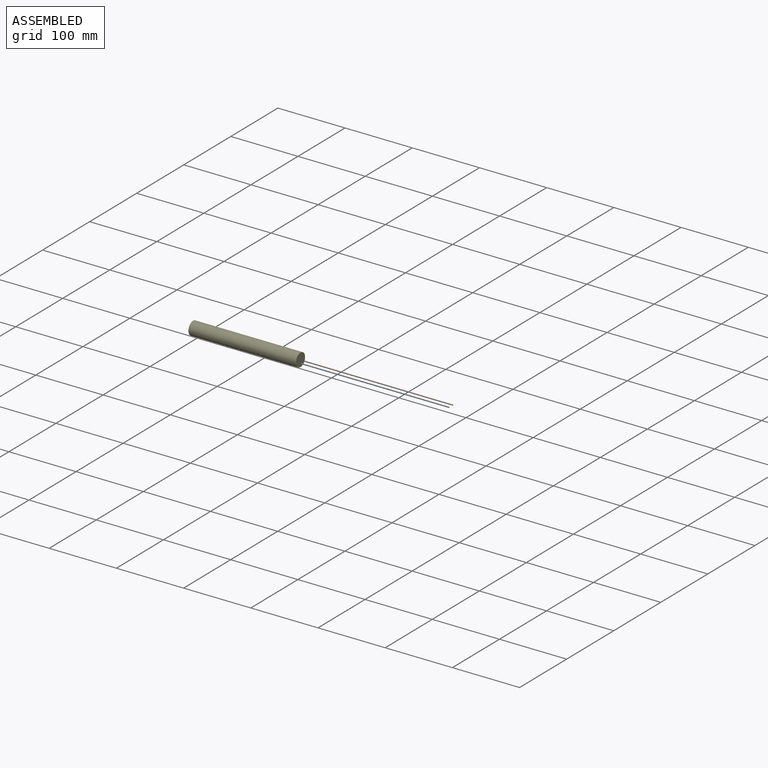
[diagram: assembled view]
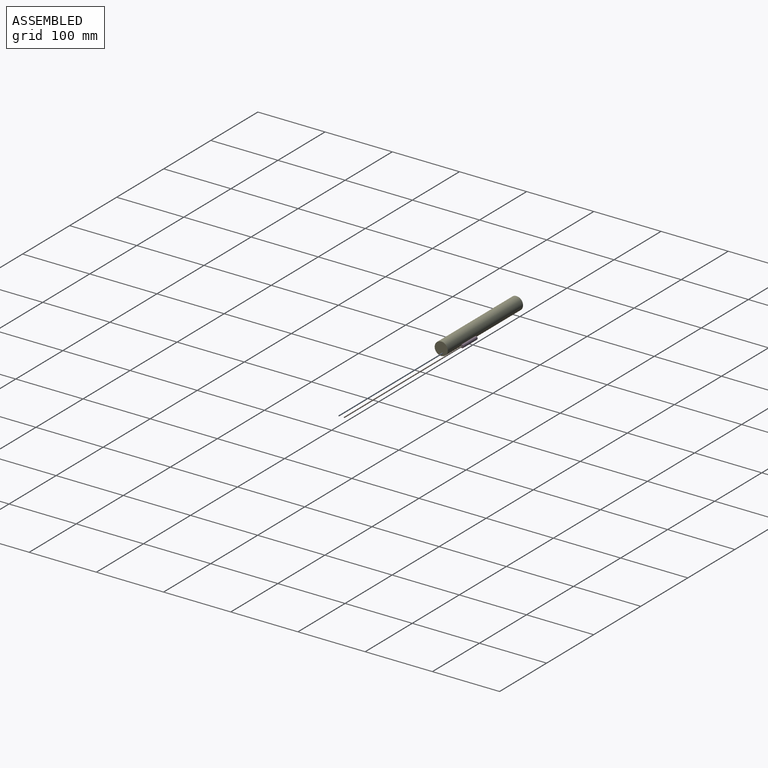
[diagram: assembled view, second angle]
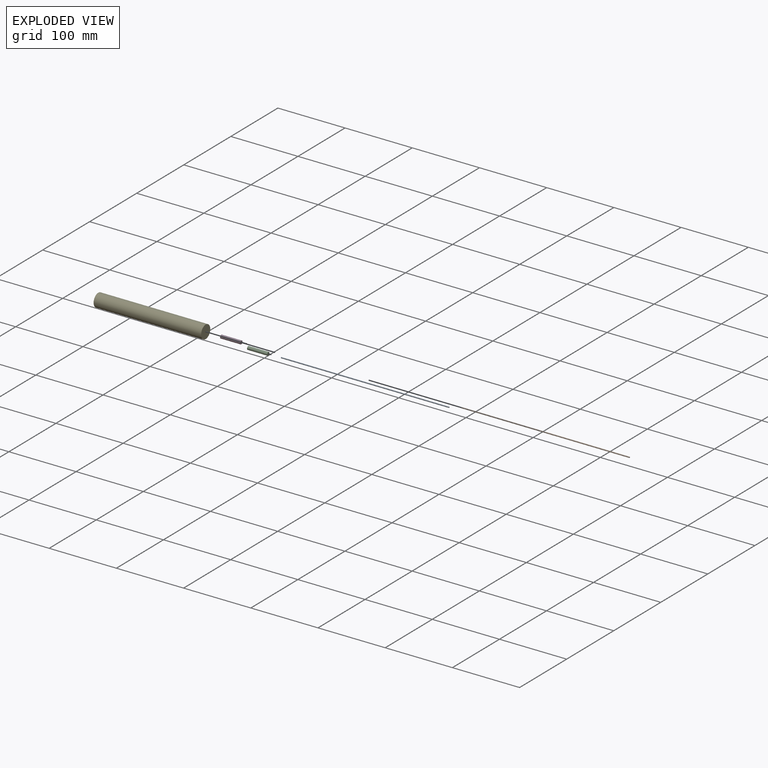
[diagram: exploded view]
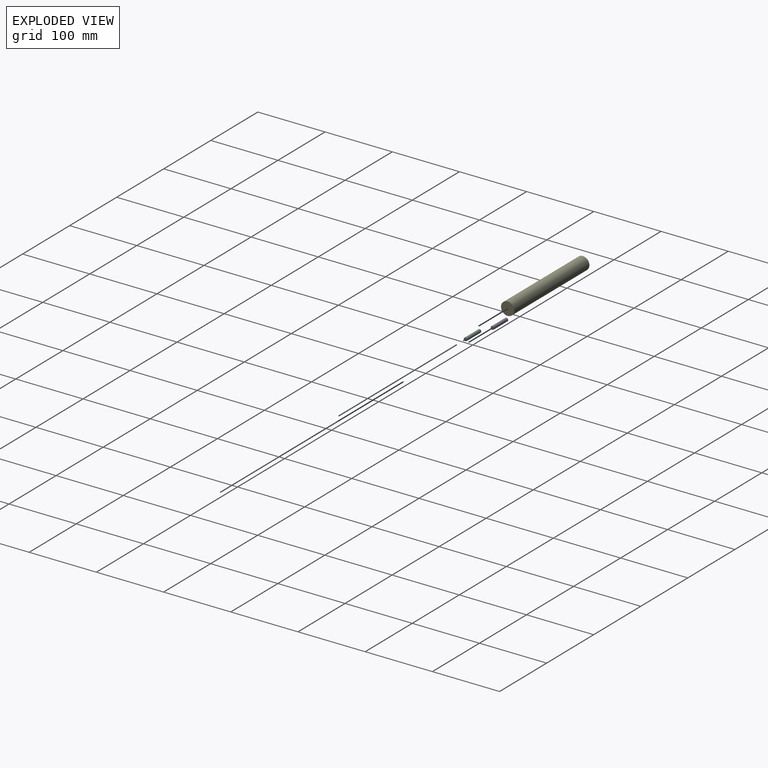
[diagram: exploded view, second angle]
ASSEMBLY  parts=5 mates=2
PART A: 3 faces, bbox 250x1.5x1.5 mm
  f0: plane 1.5x1.5mm, normal (-1,0,0), area 1.8mm2, adj f2
  f1: plane 1.5x1.5mm, normal (1,0,0), area 1.8mm2, adj f2
  f2: cylinder r=0.75mm len=250mm, axis (1,0,0), area 1178.1mm2, adj f0,f1
PART B: same geometry as A
PART C: 3 faces, bbox 30x5x5 mm
  f0: plane 5x5mm, normal (-1,0,0), area 19.6mm2, adj f2
  f1: plane 5x5mm, normal (1,0,0), area 19.6mm2, adj f2
  f2: cylinder r=2.5mm len=30mm, axis (1,0,0), area 471.2mm2, adj f0,f1
PART D: same geometry as C
PART E: 3 faces, bbox 160x19.5x19.5 mm
  f0: plane 19.5x19.5mm, normal (-1,0,0), area 298.6mm2, adj f2
  f1: plane 19.5x19.5mm, normal (1,0,0), area 298.6mm2, adj f2
  f2: cylinder r=9.75mm len=160mm, axis (1,0,0), area 9801.8mm2, adj f0,f1
PLACE A rot(axis=(0,1,0),180deg) t=(-221.8,-3.72,7.99)mm
PLACE B rot(axis=(0,1,0),180deg) t=(-221.8,4.28,7.99)mm
PLACE C rot(axis=(0,1,0),180deg) t=(-471.8,-1.97,9.74)mm
PLACE D rot(axis=(0,1,0),180deg) t=(-471.8,6.03,9.74)mm
PLACE E t=(-601.8,3.53,3.24)mm
MATE fastened B.f2 <-> D.f2  axis (-1,0,0) through (-471.8,3.53,7.24)mm
MATE fastened A.f2 <-> C.f2  axis (-1,0,0) through (-471.8,-4.47,7.24)mm
